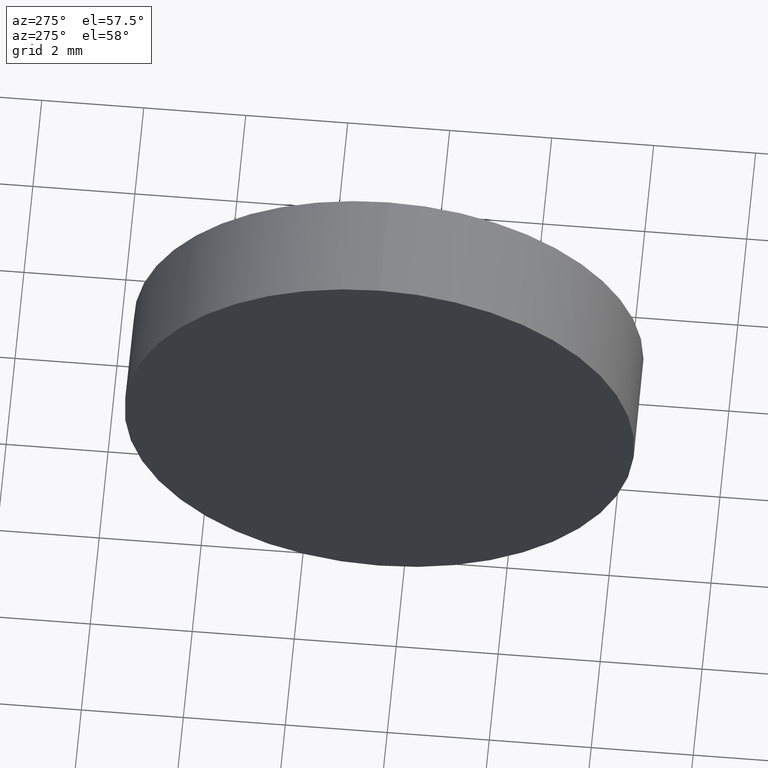
[diagram: clean part render]
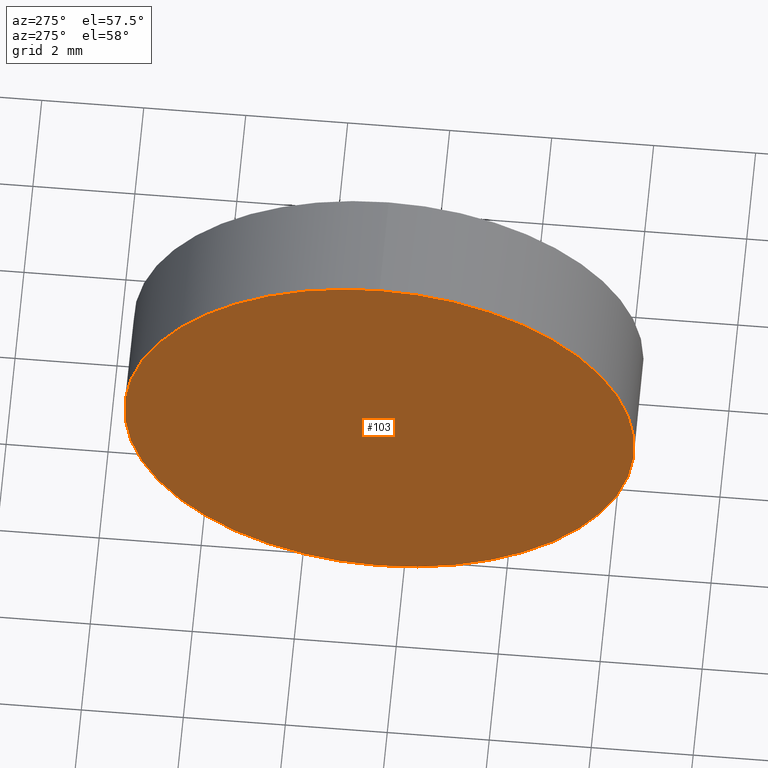
[diagram: same view with one face highlighted and labeled with its STEP entity id]
A machine part, auxiliary view. The second image highlights one B-rep face of the part: STEP entity #103.
In plain terms, the highlighted planar face has unit normal (1, 0, 0).
Its self-contained STEP definition (entity closure, byte-faithful):
#4 = CARTESIAN_POINT ( 'NONE',  ( 47.70171121220715100, 28.47759563463748100, 4.999999999999997300 ) ) ;
#16 = DIRECTION ( 'NONE',  ( -1.000000000000000000, -0.0000000000000000000, -0.0000000000000000000 ) ) ;
#26 = DIRECTION ( 'NONE',  ( 1.000000000000000000, 0.0000000000000000000, 0.0000000000000000000 ) ) ;
#32 = VERTEX_POINT ( 'NONE', #49 ) ;
#41 = CARTESIAN_POINT ( 'NONE',  ( 47.70171121220715100, 28.47759563463748100, 0.0000000000000000000 ) ) ;
#42 = DIRECTION ( 'NONE',  ( 0.0000000000000000000, 0.0000000000000000000, 1.000000000000000000 ) ) ;
#49 = CARTESIAN_POINT ( 'NONE',  ( 47.70171121220715100, 28.47759563463748100, -4.999999999999997300 ) ) ;
#69 = AXIS2_PLACEMENT_3D ( 'NONE', #166, #145, #115 ) ;
#71 = ORIENTED_EDGE ( 'NONE', *, *, #109, .T. ) ;
#77 = EDGE_CURVE ( 'NONE', #32, #118, #182, .T. ) ;
#80 = CIRCLE ( 'NONE', #130, 4.999999999999997300 ) ;
#91 = DIRECTION ( 'NONE',  ( 0.0000000000000000000, 0.0000000000000000000, -1.000000000000000000 ) ) ;
#103 = ADVANCED_FACE ( 'NONE', ( #167 ), #178, .F. ) ;
#105 = CARTESIAN_POINT ( 'NONE',  ( 47.70171121220715100, 28.47759563463748100, 0.0000000000000000000 ) ) ;
#109 = EDGE_CURVE ( 'NONE', #118, #32, #80, .T. ) ;
#114 = ORIENTED_EDGE ( 'NONE', *, *, #77, .T. ) ;
#115 = DIRECTION ( 'NONE',  ( 0.0000000000000000000, 0.0000000000000000000, 1.000000000000000000 ) ) ;
#118 = VERTEX_POINT ( 'NONE', #4 ) ;
#130 = AXIS2_PLACEMENT_3D ( 'NONE', #105, #16, #42 ) ;
#145 = DIRECTION ( 'NONE',  ( -1.000000000000000000, -0.0000000000000000000, -0.0000000000000000000 ) ) ;
#151 = EDGE_LOOP ( 'NONE', ( #71, #114 ) ) ;
#166 = CARTESIAN_POINT ( 'NONE',  ( 47.70171121220715100, 28.47759563463748100, 0.0000000000000000000 ) ) ;
#167 = FACE_OUTER_BOUND ( 'NONE', #151, .T. ) ;
#178 = PLANE ( 'NONE',  #181 ) ;
#181 = AXIS2_PLACEMENT_3D ( 'NONE', #41, #26, #91 ) ;
#182 = CIRCLE ( 'NONE', #69, 4.999999999999997300 ) ;